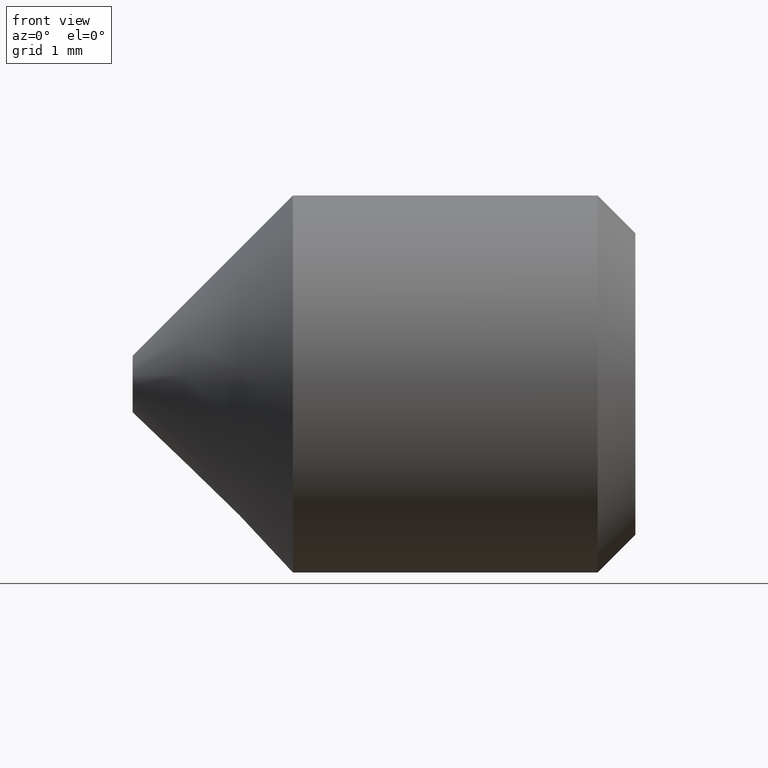
[diagram: clean part render]
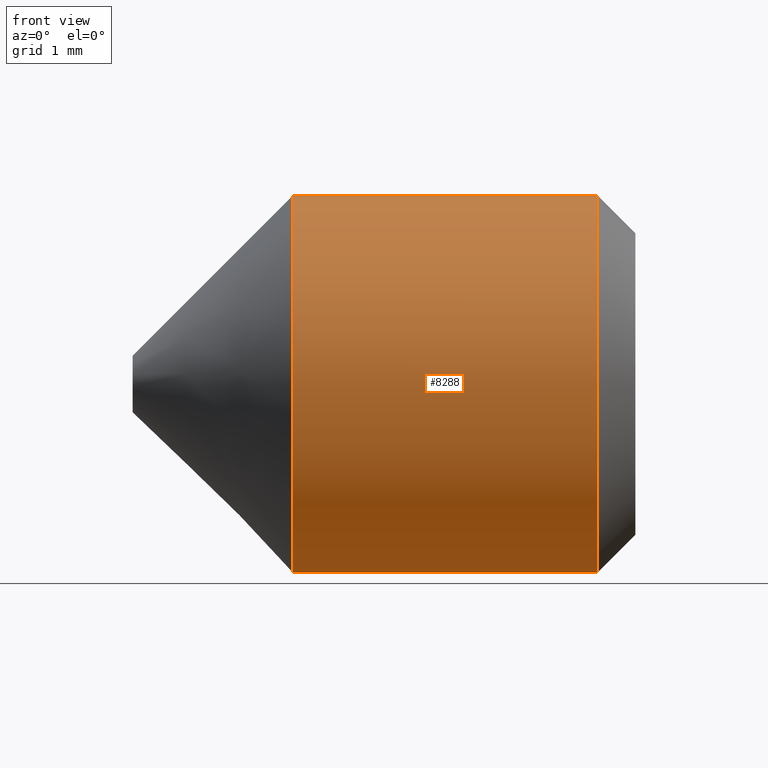
[diagram: same view with one face highlighted and labeled with its STEP entity id]
A machine part, front view. The second image highlights one B-rep face of the part: STEP entity #8288.
In plain terms, the highlighted cylindrical surface (bore or boss wall) has radius 3 mm, axis along (-1, -0, -0).
Its self-contained STEP definition (entity closure, byte-faithful):
#46 = FACE_OUTER_BOUND ( 'NONE', #2285, .T. ) ;
#1229 = FACE_OUTER_BOUND ( 'NONE', #8366, .T. ) ;
#1393 = AXIS2_PLACEMENT_3D ( 'NONE', #9724, #9766, #10592 ) ;
#1469 = CARTESIAN_POINT ( 'NONE',  ( 2.549999999999971400, 0.0000000000000000000, 3.000000000000000400 ) ) ;
#1543 = CARTESIAN_POINT ( 'NONE',  ( 7.399999999999998600, 0.0000000000000000000, -3.000000000000000400 ) ) ;
#1655 = DIRECTION ( 'NONE',  ( 0.0000000000000000000, 0.0000000000000000000, 1.000000000000000000 ) ) ;
#1802 = ORIENTED_EDGE ( 'NONE', *, *, #5282, .F. ) ;
#2285 = EDGE_LOOP ( 'NONE', ( #4179 ) ) ;
#2381 = VERTEX_POINT ( 'NONE', #1543 ) ;
#2447 = AXIS2_PLACEMENT_3D ( 'NONE', #9148, #8383, #1655 ) ;
#2533 = CYLINDRICAL_SURFACE ( 'NONE', #2447, 3.000000000000000400 ) ;
#2831 = DIRECTION ( 'NONE',  ( 0.0000000000000000000, 0.0000000000000000000, -1.000000000000000000 ) ) ;
#3462 = CIRCLE ( 'NONE', #1393, 3.000000000000000400 ) ;
#4179 = ORIENTED_EDGE ( 'NONE', *, *, #6707, .T. ) ;
#5282 = EDGE_CURVE ( 'NONE', #7776, #7776, #3462, .T. ) ;
#6266 = CARTESIAN_POINT ( 'NONE',  ( 7.399999999999998600, 0.0000000000000000000, 0.0000000000000000000 ) ) ;
#6707 = EDGE_CURVE ( 'NONE', #2381, #2381, #10275, .T. ) ;
#6892 = AXIS2_PLACEMENT_3D ( 'NONE', #6266, #8753, #2831 ) ;
#7776 = VERTEX_POINT ( 'NONE', #1469 ) ;
#8288 = ADVANCED_FACE ( 'NONE', ( #46, #1229 ), #2533, .T. ) ;
#8366 = EDGE_LOOP ( 'NONE', ( #1802 ) ) ;
#8383 = DIRECTION ( 'NONE',  ( -1.000000000000000000, -0.0000000000000000000, -0.0000000000000000000 ) ) ;
#8753 = DIRECTION ( 'NONE',  ( -1.000000000000000000, 0.0000000000000000000, 0.0000000000000000000 ) ) ;
#9148 = CARTESIAN_POINT ( 'NONE',  ( 8.000000000000000000, 0.0000000000000000000, 0.0000000000000000000 ) ) ;
#9724 = CARTESIAN_POINT ( 'NONE',  ( 2.549999999999971400, 0.0000000000000000000, 0.0000000000000000000 ) ) ;
#9766 = DIRECTION ( 'NONE',  ( -1.000000000000000000, -0.0000000000000000000, -0.0000000000000000000 ) ) ;
#10275 = CIRCLE ( 'NONE', #6892, 3.000000000000000400 ) ;
#10592 = DIRECTION ( 'NONE',  ( 0.0000000000000000000, 0.0000000000000000000, 1.000000000000000000 ) ) ;